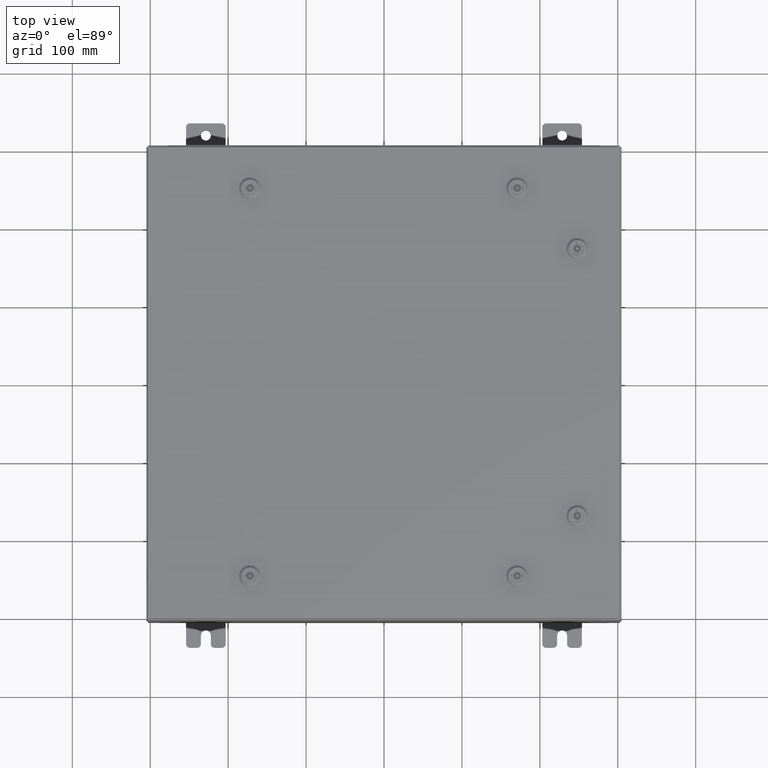
[diagram: clean part render]
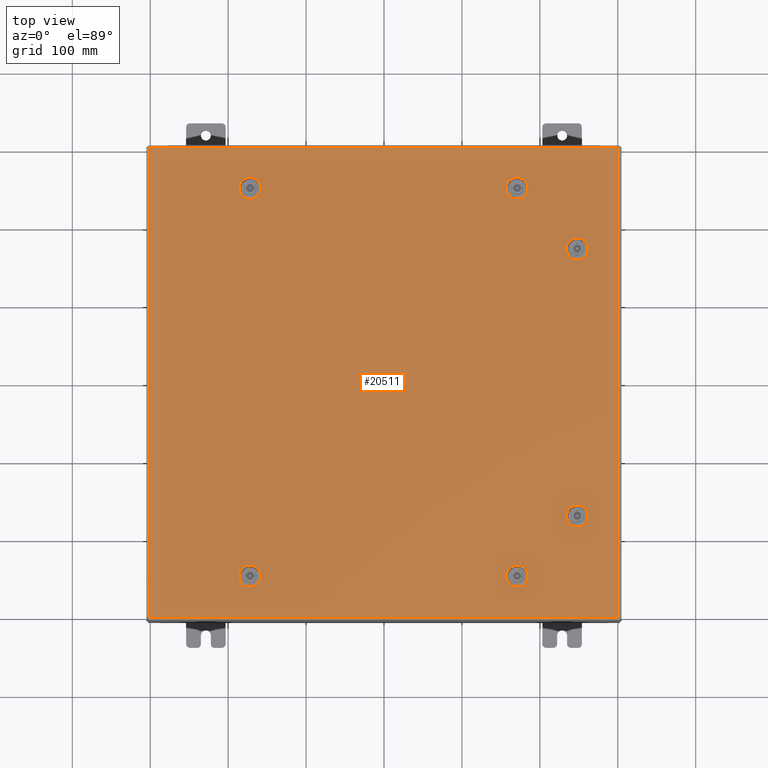
[diagram: same view with one face highlighted and labeled with its STEP entity id]
A machine part, top view. The second image highlights one B-rep face of the part: STEP entity #20511.
In plain terms, the highlighted planar face has unit normal (0, 0, -1).
Its self-contained STEP definition (entity closure, byte-faithful):
#310 = DIRECTION ( 'NONE',  ( 6.982962677686266700E-015, -0.0000000000000000000, 1.000000000000000000 ) ) ;
#464 = FACE_BOUND ( 'NONE', #61326, .T. ) ;
#482 = ORIENTED_EDGE ( 'NONE', *, *, #13082, .F. ) ;
#589 = CARTESIAN_POINT ( 'NONE',  ( -6.550547624732093500, -10.18279999999998400, -2.548900087721007400E-013 ) ) ;
#598 = DIRECTION ( 'NONE',  ( -1.000000000000000000, 0.0000000000000000000, 6.982962677686269100E-015 ) ) ;
#961 = DIRECTION ( 'NONE',  ( 0.0000000000000000000, 1.000000000000000000, 6.982962677686270700E-015 ) ) ;
#963 = EDGE_CURVE ( 'NONE', #9715, #16697, #2616, .T. ) ;
#985 = EDGE_LOOP ( 'NONE', ( #34036, #8627, #16404, #59872, #50059 ) ) ;
#1211 = VERTEX_POINT ( 'NONE', #2519 ) ;
#1497 = EDGE_CURVE ( 'NONE', #58828, #11581, #37925, .T. ) ;
#1990 = CARTESIAN_POINT ( 'NONE',  ( 10.18280000000000600, -6.949452375267901200, -4.852776656685392100E-014 ) ) ;
#2509 = CARTESIAN_POINT ( 'NONE',  ( 11.84980000000000200, 11.84980000000000000, 8.878505979408856000E-016 ) ) ;
#2519 = CARTESIAN_POINT ( 'NONE',  ( -6.949452375267869200, -9.392799999999997600, -2.493734682567286900E-013 ) ) ;
#2616 = LINE ( 'NONE', #25688, #40253 ) ;
#2874 = EDGE_CURVE ( 'NONE', #47261, #11613, #38603, .T. ) ;
#3059 = ORIENTED_EDGE ( 'NONE', *, *, #16891, .F. ) ;
#3193 = AXIS2_PLACEMENT_3D ( 'NONE', #9392, #29833, #15192 ) ;
#3556 = FACE_BOUND ( 'NONE', #33462, .T. ) ;
#4096 = EDGE_CURVE ( 'NONE', #33831, #23785, #57757, .T. ) ;
#4404 = AXIS2_PLACEMENT_3D ( 'NONE', #57966, #28647, #62877 ) ;
#4802 = CARTESIAN_POINT ( 'NONE',  ( 6.550547624732099700, 9.392799999999997600, -4.574222958191072400E-014 ) ) ;
#4816 = DIRECTION ( 'NONE',  ( 0.0000000000000000000, 0.0000000000000000000, -1.000000000000000000 ) ) ;
#4954 = ORIENTED_EDGE ( 'NONE', *, *, #54309, .F. ) ;
#5353 = CIRCLE ( 'NONE', #6055, 0.4424999999999983400 ) ;
#5449 = CARTESIAN_POINT ( 'NONE',  ( -6.550547624732093500, 10.18279999999998300, 0.0000000000000000000 ) ) ;
#5648 = CIRCLE ( 'NONE', #37816, 0.4424999999999972800 ) ;
#6055 = AXIS2_PLACEMENT_3D ( 'NONE', #10216, #44512, #15166 ) ;
#6913 = VECTOR ( 'NONE', #8698, 39.37007874015748100 ) ;
#6915 = DIRECTION ( 'NONE',  ( 5.478697338139235000E-015, 1.000000000000000000, 6.982962677686265900E-015 ) ) ;
#7020 = CIRCLE ( 'NONE', #56128, 0.4424999999999983400 ) ;
#7120 = CARTESIAN_POINT ( 'NONE',  ( -6.749999999999984900, 9.787799999999991800, 0.0000000000000000000 ) ) ;
#7467 = ORIENTED_EDGE ( 'NONE', *, *, #4096, .T. ) ;
#8055 = CARTESIAN_POINT ( 'NONE',  ( 10.18280000000000600, -6.949452375267901200, -4.852776656685392100E-014 ) ) ;
#8448 = EDGE_CURVE ( 'NONE', #11581, #60220, #53674, .T. ) ;
#8614 = VERTEX_POINT ( 'NONE', #46983 ) ;
#8627 = ORIENTED_EDGE ( 'NONE', *, *, #35405, .F. ) ;
#8686 = VERTEX_POINT ( 'NONE', #42464 ) ;
#8698 = DIRECTION ( 'NONE',  ( -8.218046007208762600E-015, -1.000000000000000000, 0.0000000000000000000 ) ) ;
#9392 = CARTESIAN_POINT ( 'NONE',  ( -6.749999999999984900, 9.787799999999991800, 0.0000000000000000000 ) ) ;
#9613 = CARTESIAN_POINT ( 'NONE',  ( 7.192499999999980400, -9.787799999999993600, -2.019067794551563600E-013 ) ) ;
#9715 = VERTEX_POINT ( 'NONE', #14983 ) ;
#9902 = VERTEX_POINT ( 'NONE', #16257 ) ;
#10216 = CARTESIAN_POINT ( 'NONE',  ( 9.787800000000007800, -6.750000000000015100, -4.713499807438240100E-014 ) ) ;
#10502 = VERTEX_POINT ( 'NONE', #4802 ) ;
#10862 = DIRECTION ( 'NONE',  ( -1.000000000000000000, -1.095739467627835000E-014, 6.982962677686269100E-015 ) ) ;
#10910 = CIRCLE ( 'NONE', #59288, 0.4424999999999972800 ) ;
#10972 = VERTEX_POINT ( 'NONE', #43127 ) ;
#11168 = ORIENTED_EDGE ( 'NONE', *, *, #36357, .F. ) ;
#11360 = DIRECTION ( 'NONE',  ( 0.0000000000000000000, 0.0000000000000000000, 1.000000000000000000 ) ) ;
#11581 = VERTEX_POINT ( 'NONE', #52307 ) ;
#11613 = VERTEX_POINT ( 'NONE', #62126 ) ;
#11937 = ORIENTED_EDGE ( 'NONE', *, *, #13335, .T. ) ;
#12015 = FACE_BOUND ( 'NONE', #23108, .T. ) ;
#12083 = DIRECTION ( 'NONE',  ( 1.000000000000000000, 0.0000000000000000000, 0.0000000000000000000 ) ) ;
#12209 = CIRCLE ( 'NONE', #43919, 0.4424999999999972800 ) ;
#12364 = VECTOR ( 'NONE', #17341, 39.37007874015748100 ) ;
#13067 = VERTEX_POINT ( 'NONE', #43742 ) ;
#13082 = EDGE_CURVE ( 'NONE', #42659, #8614, #57631, .T. ) ;
#13328 = ORIENTED_EDGE ( 'NONE', *, *, #62038, .F. ) ;
#13335 = EDGE_CURVE ( 'NONE', #28683, #33831, #25444, .T. ) ;
#14522 = VERTEX_POINT ( 'NONE', #9613 ) ;
#14595 = CARTESIAN_POINT ( 'NONE',  ( -11.84980000000000000, 11.84980000000000000, -1.297627796990525000E-015 ) ) ;
#14613 = AXIS2_PLACEMENT_3D ( 'NONE', #53799, #24437, #58694 ) ;
#14863 = CARTESIAN_POINT ( 'NONE',  ( -6.550547624732093500, -10.18279999999998400, -2.548900087721007400E-013 ) ) ;
#14948 = VERTEX_POINT ( 'NONE', #8055 ) ;
#14966 = AXIS2_PLACEMENT_3D ( 'NONE', #26865, #61105, #31775 ) ;
#14983 = CARTESIAN_POINT ( 'NONE',  ( 6.949452375267864700, 10.18279999999999000, 0.0000000000000000000 ) ) ;
#15166 = DIRECTION ( 'NONE',  ( 0.0000000000000000000, 1.000000000000000000, 6.982962677686252500E-015 ) ) ;
#15192 = DIRECTION ( 'NONE',  ( 1.000000000000000000, 0.0000000000000000000, 0.0000000000000000000 ) ) ;
#16003 = ORIENTED_EDGE ( 'NONE', *, *, #17460, .F. ) ;
#16219 = VERTEX_POINT ( 'NONE', #25421 ) ;
#16257 = CARTESIAN_POINT ( 'NONE',  ( -6.949452375267865600, 10.18279999999999000, 0.0000000000000000000 ) ) ;
#16404 = ORIENTED_EDGE ( 'NONE', *, *, #27375, .F. ) ;
#16455 = VECTOR ( 'NONE', #24029, 39.37007874015748100 ) ;
#16697 = VERTEX_POINT ( 'NONE', #37589 ) ;
#16891 = EDGE_CURVE ( 'NONE', #23383, #44655, #21382, .T. ) ;
#17053 = AXIS2_PLACEMENT_3D ( 'NONE', #28805, #63038, #33705 ) ;
#17112 = VECTOR ( 'NONE', #48899, 39.37007874015748100 ) ;
#17145 = DIRECTION ( 'NONE',  ( -6.982962677686266700E-015, -6.982962677686266700E-015, 1.000000000000000000 ) ) ;
#17313 = ORIENTED_EDGE ( 'NONE', *, *, #60940, .F. ) ;
#17341 = DIRECTION ( 'NONE',  ( -1.000000000000000000, -0.0000000000000000000, -0.0000000000000000000 ) ) ;
#17460 = EDGE_CURVE ( 'NONE', #16697, #10502, #27476, .T. ) ;
#17715 = ORIENTED_EDGE ( 'NONE', *, *, #963, .F. ) ;
#18310 = CIRCLE ( 'NONE', #40328, 0.4424999999999972800 ) ;
#18437 = VERTEX_POINT ( 'NONE', #35925 ) ;
#19299 = EDGE_LOOP ( 'NONE', ( #27305, #59808, #60735, #17313, #57619 ) ) ;
#19462 = AXIS2_PLACEMENT_3D ( 'NONE', #26949, #61188, #31851 ) ;
#19477 = CARTESIAN_POINT ( 'NONE',  ( 0.0000000000000000000, 0.0000000000000000000, 0.0000000000000000000 ) ) ;
#19542 = CIRCLE ( 'NONE', #4404, 0.4424999999999972800 ) ;
#19746 = CARTESIAN_POINT ( 'NONE',  ( 9.392800000000011800, -6.550547624732132600, 0.0000000000000000000 ) ) ;
#20019 = LINE ( 'NONE', #62514, #6913 ) ;
#20100 = AXIS2_PLACEMENT_3D ( 'NONE', #29721, #310, #34652 ) ;
#20511 = ADVANCED_FACE ( 'NONE', ( #3556, #464, #38113, #25074, #12015, #62624, #49606 ), #34220, .F. ) ;
#21013 = DIRECTION ( 'NONE',  ( 1.095739467627835000E-014, -1.000000000000000000, -6.982962677686269100E-015 ) ) ;
#21382 = CIRCLE ( 'NONE', #17053, 0.4424999999999972800 ) ;
#21401 = VERTEX_POINT ( 'NONE', #26015 ) ;
#21616 = DIRECTION ( 'NONE',  ( -1.000000000000000000, -2.739348669069625000E-015, -6.982962677686265900E-015 ) ) ;
#22525 = CARTESIAN_POINT ( 'NONE',  ( -6.550547624732093500, 10.18279999999998300, 0.0000000000000000000 ) ) ;
#23038 = EDGE_CURVE ( 'NONE', #10502, #42659, #55552, .T. ) ;
#23108 = EDGE_LOOP ( 'NONE', ( #17715, #24104, #482, #54930, #16003 ) ) ;
#23183 = VERTEX_POINT ( 'NONE', #19746 ) ;
#23311 = VERTEX_POINT ( 'NONE', #54856 ) ;
#23383 = VERTEX_POINT ( 'NONE', #60808 ) ;
#23484 = CARTESIAN_POINT ( 'NONE',  ( -6.550547624732099700, -9.392799999999997600, -2.493734682567286900E-013 ) ) ;
#23525 = EDGE_CURVE ( 'NONE', #13067, #14948, #5648, .T. ) ;
#23760 = CARTESIAN_POINT ( 'NONE',  ( -6.550547624732099700, 9.392799999999995800, 0.0000000000000000000 ) ) ;
#23785 = VERTEX_POINT ( 'NONE', #48594 ) ;
#24029 = DIRECTION ( 'NONE',  ( 1.000000000000000000, -2.739348669069625000E-015, -6.982962677686286400E-015 ) ) ;
#24104 = ORIENTED_EDGE ( 'NONE', *, *, #30131, .F. ) ;
#24437 = DIRECTION ( 'NONE',  ( 6.982962677686266700E-015, -0.0000000000000000000, 1.000000000000000000 ) ) ;
#24630 = VECTOR ( 'NONE', #21013, 39.37007874015748100 ) ;
#24647 = CARTESIAN_POINT ( 'NONE',  ( -6.550547624732099700, -9.392799999999997600, -2.493734682567286900E-013 ) ) ;
#24795 = CARTESIAN_POINT ( 'NONE',  ( 11.84980000000000200, 11.84980000000000000, 8.878505979408856000E-016 ) ) ;
#24824 = VECTOR ( 'NONE', #60060, 39.37007874015748100 ) ;
#24921 = DIRECTION ( 'NONE',  ( -0.0000000000000000000, -6.982962677686266700E-015, 1.000000000000000000 ) ) ;
#25074 = FACE_BOUND ( 'NONE', #34667, .T. ) ;
#25421 = CARTESIAN_POINT ( 'NONE',  ( -6.949452375267865600, -10.18279999999999100, 0.0000000000000000000 ) ) ;
#25444 = LINE ( 'NONE', #2509, #12364 ) ;
#25574 = VECTOR ( 'NONE', #55433, 39.37007874015748100 ) ;
#25600 = EDGE_CURVE ( 'NONE', #14522, #8686, #50939, .T. ) ;
#25688 = CARTESIAN_POINT ( 'NONE',  ( 6.550547624732091700, 10.18279999999998400, -4.574222958191066700E-014 ) ) ;
#25793 = VECTOR ( 'NONE', #21616, 39.37007874015748100 ) ;
#26015 = CARTESIAN_POINT ( 'NONE',  ( 9.392800000000015400, 6.949452375267905600, 0.0000000000000000000 ) ) ;
#26589 = VECTOR ( 'NONE', #27463, 39.37007874015748100 ) ;
#26865 = CARTESIAN_POINT ( 'NONE',  ( -6.749999999999984900, 9.787799999999991800, 0.0000000000000000000 ) ) ;
#26949 = CARTESIAN_POINT ( 'NONE',  ( 6.749999999999983100, -9.787799999999993600, -2.049967404400325100E-013 ) ) ;
#27305 = ORIENTED_EDGE ( 'NONE', *, *, #48015, .F. ) ;
#27375 = EDGE_CURVE ( 'NONE', #60220, #9902, #43905, .T. ) ;
#27408 = DIRECTION ( 'NONE',  ( -0.0000000000000000000, -6.982962677686266700E-015, 1.000000000000000000 ) ) ;
#27463 = DIRECTION ( 'NONE',  ( 1.000000000000000000, -0.0000000000000000000, -0.0000000000000000000 ) ) ;
#27476 = CIRCLE ( 'NONE', #14613, 0.4424999999999972800 ) ;
#28404 = VERTEX_POINT ( 'NONE', #14863 ) ;
#28613 = ORIENTED_EDGE ( 'NONE', *, *, #34267, .F. ) ;
#28647 = DIRECTION ( 'NONE',  ( -6.982962677686266700E-015, -6.982962677686266700E-015, 1.000000000000000000 ) ) ;
#28683 = VERTEX_POINT ( 'NONE', #24795 ) ;
#28805 = CARTESIAN_POINT ( 'NONE',  ( -6.749999999999984900, -9.787799999999993600, -2.521317385144147400E-013 ) ) ;
#28937 = DIRECTION ( 'NONE',  ( 1.000000000000000000, 2.739348669069610000E-015, -0.0000000000000000000 ) ) ;
#29081 = LINE ( 'NONE', #1990, #53605 ) ;
#29230 = CARTESIAN_POINT ( 'NONE',  ( -11.84980000000000000, 11.84980000000000000, -1.297627796990525000E-015 ) ) ;
#29247 = DIRECTION ( 'NONE',  ( 0.0000000000000000000, 0.0000000000000000000, 1.000000000000000000 ) ) ;
#29587 = EDGE_CURVE ( 'NONE', #23183, #13067, #37660, .T. ) ;
#29721 = CARTESIAN_POINT ( 'NONE',  ( 6.749999999999983100, 9.787799999999993600, -4.713499807438223100E-014 ) ) ;
#29833 = DIRECTION ( 'NONE',  ( 0.0000000000000000000, 0.0000000000000000000, 1.000000000000000000 ) ) ;
#29858 = EDGE_CURVE ( 'NONE', #21401, #42883, #20019, .T. ) ;
#30022 = DIRECTION ( 'NONE',  ( 6.982962677686266700E-015, -0.0000000000000000000, 1.000000000000000000 ) ) ;
#30131 = EDGE_CURVE ( 'NONE', #8614, #9715, #39933, .T. ) ;
#30371 = DIRECTION ( 'NONE',  ( -0.0000000000000000000, -6.982962677686266700E-015, 1.000000000000000000 ) ) ;
#30414 = ORIENTED_EDGE ( 'NONE', *, *, #54786, .F. ) ;
#30813 = EDGE_CURVE ( 'NONE', #18437, #28683, #62106, .T. ) ;
#31029 = CARTESIAN_POINT ( 'NONE',  ( 10.18280000000000200, 6.949452375267901200, 0.0000000000000000000 ) ) ;
#31276 = ORIENTED_EDGE ( 'NONE', *, *, #30813, .T. ) ;
#31450 = CARTESIAN_POINT ( 'NONE',  ( 6.550547624732099700, -9.392799999999997600, -2.036312386748179800E-013 ) ) ;
#31775 = DIRECTION ( 'NONE',  ( 1.000000000000000000, 0.0000000000000000000, 0.0000000000000000000 ) ) ;
#31851 = DIRECTION ( 'NONE',  ( 1.000000000000000000, 0.0000000000000000000, 6.982962677686287200E-015 ) ) ;
#33462 = EDGE_LOOP ( 'NONE', ( #55362, #46970, #4954, #47585 ) ) ;
#33705 = DIRECTION ( 'NONE',  ( 0.0000000000000000000, 1.000000000000000000, 6.982962677686287200E-015 ) ) ;
#33741 = ORIENTED_EDGE ( 'NONE', *, *, #40132, .F. ) ;
#33831 = VERTEX_POINT ( 'NONE', #29230 ) ;
#34036 = ORIENTED_EDGE ( 'NONE', *, *, #46764, .F. ) ;
#34150 = AXIS2_PLACEMENT_3D ( 'NONE', #54273, #24921, #59174 ) ;
#34220 = PLANE ( 'NONE',  #44267 ) ;
#34267 = EDGE_CURVE ( 'NONE', #28404, #23383, #34411, .T. ) ;
#34283 = ORIENTED_EDGE ( 'NONE', *, *, #37872, .F. ) ;
#34411 = CIRCLE ( 'NONE', #34150, 0.4424999999999972800 ) ;
#34574 = CARTESIAN_POINT ( 'NONE',  ( 11.84980000000000000, -11.84980000000000000, -2.048885995248197400E-016 ) ) ;
#34652 = DIRECTION ( 'NONE',  ( -1.000000000000000000, 0.0000000000000000000, 6.982962677686269100E-015 ) ) ;
#34667 = EDGE_LOOP ( 'NONE', ( #11168, #33741, #13328, #3059, #28613 ) ) ;
#34874 = DIRECTION ( 'NONE',  ( -1.000000000000000000, 1.643609201441752500E-014, 0.0000000000000000000 ) ) ;
#35405 = EDGE_CURVE ( 'NONE', #9902, #23311, #58858, .T. ) ;
#35677 = CARTESIAN_POINT ( 'NONE',  ( 6.550547624732091700, -10.18279999999998400, -2.091477791901900700E-013 ) ) ;
#35925 = CARTESIAN_POINT ( 'NONE',  ( 11.84980000000000000, -11.84980000000000000, -2.048885995248197400E-016 ) ) ;
#36357 = EDGE_CURVE ( 'NONE', #16219, #28404, #48864, .T. ) ;
#36612 = LINE ( 'NONE', #48059, #48094 ) ;
#36976 = CARTESIAN_POINT ( 'NONE',  ( 6.550547624732091700, -10.18279999999998400, -2.091477791901901000E-013 ) ) ;
#37589 = CARTESIAN_POINT ( 'NONE',  ( 6.550547624732091700, 10.18279999999998400, -4.574222958191066700E-014 ) ) ;
#37660 = LINE ( 'NONE', #40504, #24630 ) ;
#37816 = AXIS2_PLACEMENT_3D ( 'NONE', #56723, #27408, #61653 ) ;
#37872 = EDGE_CURVE ( 'NONE', #11613, #21401, #10910, .T. ) ;
#37925 = CIRCLE ( 'NONE', #3193, 0.4424999999999972800 ) ;
#38113 = FACE_BOUND ( 'NONE', #19299, .T. ) ;
#38603 = LINE ( 'NONE', #31029, #25574 ) ;
#38826 = CARTESIAN_POINT ( 'NONE',  ( 9.392800000000011800, 6.550547624732132600, 0.0000000000000000000 ) ) ;
#39170 = DIRECTION ( 'NONE',  ( -1.000000000000000000, 0.0000000000000000000, -0.0000000000000000000 ) ) ;
#39610 = LINE ( 'NONE', #51885, #26589 ) ;
#39887 = DIRECTION ( 'NONE',  ( 1.000000000000000000, 1.643609201441752500E-014, 7.785697190085976300E-029 ) ) ;
#39933 = CIRCLE ( 'NONE', #20100, 0.4424999999999972800 ) ;
#40132 = EDGE_CURVE ( 'NONE', #1211, #16219, #7020, .T. ) ;
#40253 = VECTOR ( 'NONE', #10862, 39.37007874015748100 ) ;
#40328 = AXIS2_PLACEMENT_3D ( 'NONE', #58558, #29247, #63470 ) ;
#40504 = CARTESIAN_POINT ( 'NONE',  ( 9.392800000000017100, -6.949452375267905600, -4.852776656685395200E-014 ) ) ;
#40757 = CARTESIAN_POINT ( 'NONE',  ( 9.787800000000007800, 6.750000000000015100, 0.0000000000000000000 ) ) ;
#41447 = DIRECTION ( 'NONE',  ( 0.0000000000000000000, 0.0000000000000000000, 1.000000000000000000 ) ) ;
#41892 = EDGE_LOOP ( 'NONE', ( #57312, #31276, #11937, #7467 ) ) ;
#42338 = EDGE_CURVE ( 'NONE', #42392, #23183, #5353, .T. ) ;
#42392 = VERTEX_POINT ( 'NONE', #54613 ) ;
#42464 = CARTESIAN_POINT ( 'NONE',  ( 6.949452375267867400, -9.392799999999995800, 0.0000000000000000000 ) ) ;
#42659 = VERTEX_POINT ( 'NONE', #52144 ) ;
#42883 = VERTEX_POINT ( 'NONE', #38826 ) ;
#43127 = CARTESIAN_POINT ( 'NONE',  ( 6.949452375267864700, -10.18279999999999000, -2.063622422052470700E-013 ) ) ;
#43561 = EDGE_CURVE ( 'NONE', #10972, #14522, #12209, .T. ) ;
#43742 = CARTESIAN_POINT ( 'NONE',  ( 9.392800000000015400, -6.949452375267905600, -4.852776656685395200E-014 ) ) ;
#43905 = LINE ( 'NONE', #5449, #46998 ) ;
#43919 = AXIS2_PLACEMENT_3D ( 'NONE', #46489, #17145, #51441 ) ;
#44267 = AXIS2_PLACEMENT_3D ( 'NONE', #19477, #4816, #39170 ) ;
#44512 = DIRECTION ( 'NONE',  ( -0.0000000000000000000, -6.982962677686266700E-015, 1.000000000000000000 ) ) ;
#44655 = VERTEX_POINT ( 'NONE', #23484 ) ;
#45658 = DIRECTION ( 'NONE',  ( 1.000000000000000000, 0.0000000000000000000, 0.0000000000000000000 ) ) ;
#46489 = CARTESIAN_POINT ( 'NONE',  ( 6.749999999999983100, -9.787799999999993600, -2.049967404400325100E-013 ) ) ;
#46764 = EDGE_CURVE ( 'NONE', #23311, #58828, #36612, .T. ) ;
#46970 = ORIENTED_EDGE ( 'NONE', *, *, #42338, .F. ) ;
#46983 = CARTESIAN_POINT ( 'NONE',  ( 7.192499999999980400, 9.787799999999993600, -5.022495905925838200E-014 ) ) ;
#46998 = VECTOR ( 'NONE', #34874, 39.37007874015748100 ) ;
#47261 = VERTEX_POINT ( 'NONE', #62425 ) ;
#47466 = EDGE_CURVE ( 'NONE', #23785, #18437, #39610, .T. ) ;
#47585 = ORIENTED_EDGE ( 'NONE', *, *, #23525, .F. ) ;
#48015 = EDGE_CURVE ( 'NONE', #8686, #61922, #53412, .T. ) ;
#48059 = CARTESIAN_POINT ( 'NONE',  ( -6.550547624732099700, 9.392799999999995800, 0.0000000000000000000 ) ) ;
#48094 = VECTOR ( 'NONE', #28937, 39.37007874015748100 ) ;
#48594 = CARTESIAN_POINT ( 'NONE',  ( -11.84979999999999500, -11.84980000000000000, -2.048885995248197400E-016 ) ) ;
#48864 = LINE ( 'NONE', #589, #60329 ) ;
#48899 = DIRECTION ( 'NONE',  ( 0.0000000000000000000, -1.000000000000000000, 0.0000000000000000000 ) ) ;
#49092 = VECTOR ( 'NONE', #58983, 39.37007874015748100 ) ;
#49606 = FACE_OUTER_BOUND ( 'NONE', #41892, .T. ) ;
#50059 = ORIENTED_EDGE ( 'NONE', *, *, #1497, .F. ) ;
#50158 = EDGE_CURVE ( 'NONE', #61922, #54451, #19542, .T. ) ;
#50909 = LINE ( 'NONE', #35677, #24824 ) ;
#50939 = CIRCLE ( 'NONE', #19462, 0.4424999999999972800 ) ;
#51441 = DIRECTION ( 'NONE',  ( 1.000000000000000000, 0.0000000000000000000, 6.982962677686287200E-015 ) ) ;
#51885 = CARTESIAN_POINT ( 'NONE',  ( -11.84979999999999500, -11.84980000000000000, -2.048885995248197400E-016 ) ) ;
#52144 = CARTESIAN_POINT ( 'NONE',  ( 6.949452375267867400, 9.392799999999995800, -4.852776656685374400E-014 ) ) ;
#52307 = CARTESIAN_POINT ( 'NONE',  ( -6.307499999999987700, 9.787799999999991800, 0.0000000000000000000 ) ) ;
#52955 = CARTESIAN_POINT ( 'NONE',  ( 6.550547624732099700, -9.392799999999997600, -2.036312386748179800E-013 ) ) ;
#53070 = ORIENTED_EDGE ( 'NONE', *, *, #2874, .F. ) ;
#53399 = CARTESIAN_POINT ( 'NONE',  ( 6.550547624732099700, 9.392799999999997600, -4.574222958191072400E-014 ) ) ;
#53412 = LINE ( 'NONE', #31450, #25793 ) ;
#53605 = VECTOR ( 'NONE', #6915, 39.37007874015748100 ) ;
#53674 = CIRCLE ( 'NONE', #14966, 0.4424999999999972800 ) ;
#53799 = CARTESIAN_POINT ( 'NONE',  ( 6.749999999999983100, 9.787799999999993600, -4.713499807438223100E-014 ) ) ;
#53998 = DIRECTION ( 'NONE',  ( -1.000000000000000000, 2.739348669069610000E-015, 7.785697190086040200E-029 ) ) ;
#54273 = CARTESIAN_POINT ( 'NONE',  ( -6.749999999999984900, -9.787799999999993600, -2.521317385144147400E-013 ) ) ;
#54309 = EDGE_CURVE ( 'NONE', #14948, #42392, #29081, .T. ) ;
#54451 = VERTEX_POINT ( 'NONE', #36976 ) ;
#54613 = CARTESIAN_POINT ( 'NONE',  ( 10.18280000000000700, -6.550547624732132600, -4.574222958191090100E-014 ) ) ;
#54723 = AXIS2_PLACEMENT_3D ( 'NONE', #7120, #41447, #12083 ) ;
#54786 = EDGE_CURVE ( 'NONE', #42883, #47261, #18310, .T. ) ;
#54856 = CARTESIAN_POINT ( 'NONE',  ( -6.949452375267869200, 9.392799999999995800, 0.0000000000000000000 ) ) ;
#54930 = ORIENTED_EDGE ( 'NONE', *, *, #23038, .F. ) ;
#55362 = ORIENTED_EDGE ( 'NONE', *, *, #29587, .F. ) ;
#55433 = DIRECTION ( 'NONE',  ( -5.478697338139235000E-015, 1.000000000000000000, -0.0000000000000000000 ) ) ;
#55552 = LINE ( 'NONE', #53399, #16455 ) ;
#56128 = AXIS2_PLACEMENT_3D ( 'NONE', #59701, #30371, #961 ) ;
#56723 = CARTESIAN_POINT ( 'NONE',  ( 9.787800000000007800, -6.750000000000015100, -4.713499807438240100E-014 ) ) ;
#57312 = ORIENTED_EDGE ( 'NONE', *, *, #47466, .T. ) ;
#57619 = ORIENTED_EDGE ( 'NONE', *, *, #50158, .F. ) ;
#57631 = CIRCLE ( 'NONE', #58823, 0.4424999999999972800 ) ;
#57711 = LINE ( 'NONE', #24647, #59231 ) ;
#57757 = LINE ( 'NONE', #14595, #17112 ) ;
#57966 = CARTESIAN_POINT ( 'NONE',  ( 6.749999999999983100, -9.787799999999993600, -2.049967404400325100E-013 ) ) ;
#58558 = CARTESIAN_POINT ( 'NONE',  ( 9.787800000000007800, 6.750000000000015100, 0.0000000000000000000 ) ) ;
#58694 = DIRECTION ( 'NONE',  ( -1.000000000000000000, 0.0000000000000000000, 6.982962677686269100E-015 ) ) ;
#58823 = AXIS2_PLACEMENT_3D ( 'NONE', #59361, #30022, #598 ) ;
#58828 = VERTEX_POINT ( 'NONE', #23760 ) ;
#58858 = CIRCLE ( 'NONE', #54723, 0.4424999999999983400 ) ;
#58983 = DIRECTION ( 'NONE',  ( 0.0000000000000000000, 1.000000000000000000, 0.0000000000000000000 ) ) ;
#59174 = DIRECTION ( 'NONE',  ( 0.0000000000000000000, 1.000000000000000000, 6.982962677686287200E-015 ) ) ;
#59231 = VECTOR ( 'NONE', #53998, 39.37007874015748100 ) ;
#59288 = AXIS2_PLACEMENT_3D ( 'NONE', #40757, #11360, #45658 ) ;
#59361 = CARTESIAN_POINT ( 'NONE',  ( 6.749999999999983100, 9.787799999999993600, -4.713499807438223100E-014 ) ) ;
#59701 = CARTESIAN_POINT ( 'NONE',  ( -6.749999999999984900, -9.787799999999993600, -2.521317385144147400E-013 ) ) ;
#59808 = ORIENTED_EDGE ( 'NONE', *, *, #25600, .F. ) ;
#59872 = ORIENTED_EDGE ( 'NONE', *, *, #8448, .F. ) ;
#60060 = DIRECTION ( 'NONE',  ( 1.000000000000000000, -1.095739467627835000E-014, 6.982962677686171300E-015 ) ) ;
#60220 = VERTEX_POINT ( 'NONE', #22525 ) ;
#60329 = VECTOR ( 'NONE', #39887, 39.37007874015748100 ) ;
#60735 = ORIENTED_EDGE ( 'NONE', *, *, #43561, .F. ) ;
#60808 = CARTESIAN_POINT ( 'NONE',  ( -6.307499999999987700, -9.787799999999993600, -2.521317385144147400E-013 ) ) ;
#60940 = EDGE_CURVE ( 'NONE', #54451, #10972, #50909, .T. ) ;
#61105 = DIRECTION ( 'NONE',  ( 0.0000000000000000000, 0.0000000000000000000, 1.000000000000000000 ) ) ;
#61188 = DIRECTION ( 'NONE',  ( -6.982962677686266700E-015, -6.982962677686266700E-015, 1.000000000000000000 ) ) ;
#61326 = EDGE_LOOP ( 'NONE', ( #53070, #30414, #61593, #34283 ) ) ;
#61593 = ORIENTED_EDGE ( 'NONE', *, *, #29858, .F. ) ;
#61653 = DIRECTION ( 'NONE',  ( 0.0000000000000000000, 1.000000000000000000, 6.982962677686269100E-015 ) ) ;
#61922 = VERTEX_POINT ( 'NONE', #52955 ) ;
#62038 = EDGE_CURVE ( 'NONE', #44655, #1211, #57711, .T. ) ;
#62106 = LINE ( 'NONE', #34574, #49092 ) ;
#62126 = CARTESIAN_POINT ( 'NONE',  ( 10.18280000000000200, 6.949452375267901200, 0.0000000000000000000 ) ) ;
#62425 = CARTESIAN_POINT ( 'NONE',  ( 10.18280000000000600, 6.550547624732132600, 0.0000000000000000000 ) ) ;
#62514 = CARTESIAN_POINT ( 'NONE',  ( 9.392800000000015400, 6.949452375267905600, 0.0000000000000000000 ) ) ;
#62624 = FACE_BOUND ( 'NONE', #985, .T. ) ;
#62877 = DIRECTION ( 'NONE',  ( 1.000000000000000000, 0.0000000000000000000, 6.982962677686287200E-015 ) ) ;
#63038 = DIRECTION ( 'NONE',  ( -0.0000000000000000000, -6.982962677686266700E-015, 1.000000000000000000 ) ) ;
#63470 = DIRECTION ( 'NONE',  ( 1.000000000000000000, 0.0000000000000000000, 0.0000000000000000000 ) ) ;